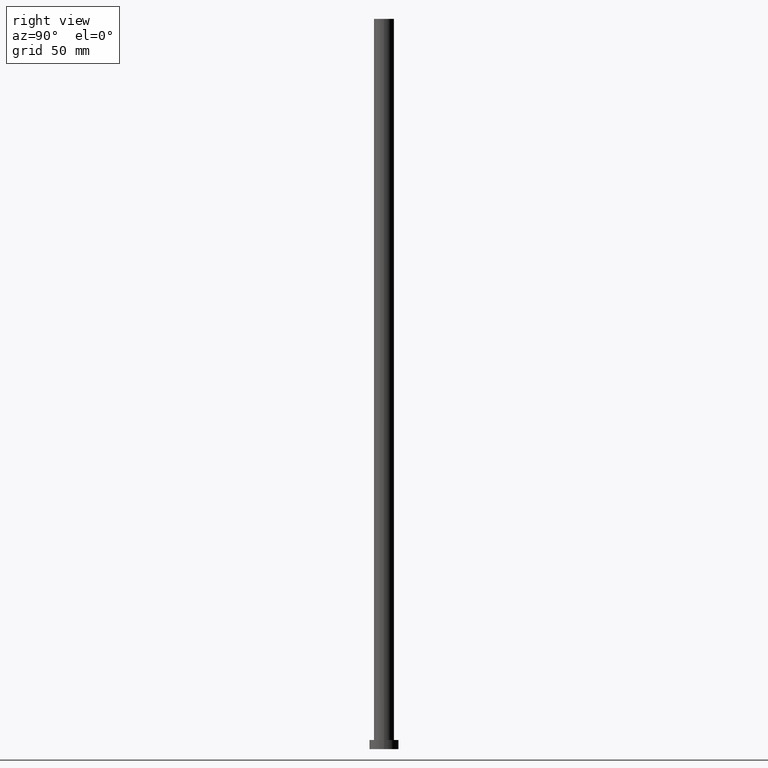
[diagram: clean part render]
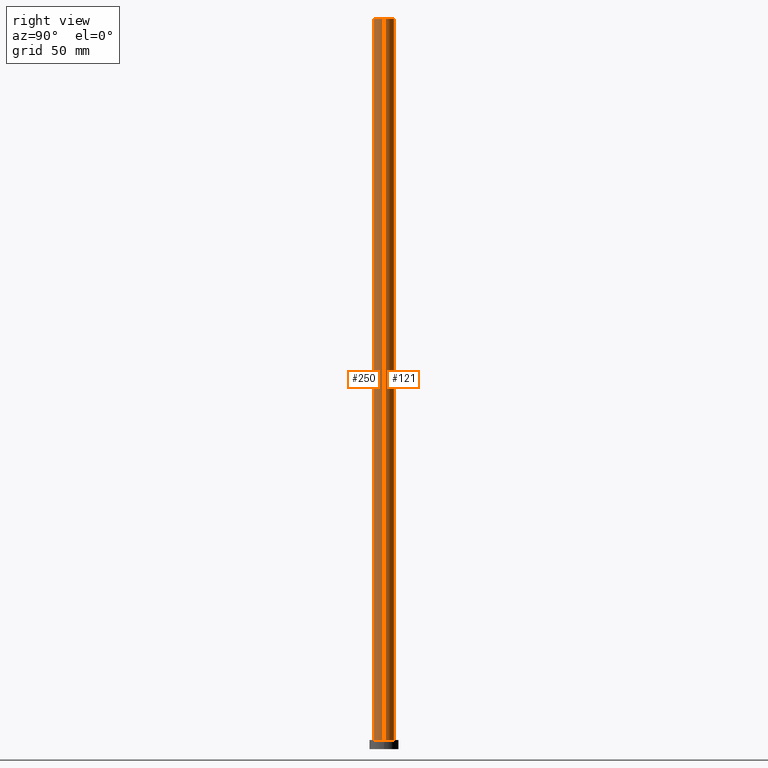
[diagram: same view with one multi-face feature highlighted, each face labeled with its STEP entity id]
A machine part, right view. The highlighted faces form ONE feature: a constant-radius fillet chain: 2 tangent blend faces with common blend radius 5.5 mm. The faces share edges in the B-rep.
Their STEP definitions:
[1] entity #250 (Cylinder):
#9 = AXIS2_PLACEMENT_3D ( 'NONE', #92, #136, #30 ) ;
#11 = EDGE_LOOP ( 'NONE', ( #48, #232, #163, #193 ) ) ;
#14 = VERTEX_POINT ( 'NONE', #224 ) ;
#19 = CARTESIAN_POINT ( 'NONE',  ( -5.500000000000000000, 0.000000000000000000, 400.0000000000000000 ) ) ;
#25 = EDGE_CURVE ( 'NONE', #225, #168, #71, .T. ) ;
#26 = AXIS2_PLACEMENT_3D ( 'NONE', #194, #169, #133 ) ;
#28 = DIRECTION ( 'NONE',  ( 1.000000000000000000, 0.000000000000000000, 0.000000000000000000 ) ) ;
#30 = DIRECTION ( 'NONE',  ( 1.000000000000000000, 0.000000000000000000, 0.000000000000000000 ) ) ;
#37 = VERTEX_POINT ( 'NONE', #172 ) ;
#47 = FACE_OUTER_BOUND ( 'NONE', #11, .T. ) ;
#48 = ORIENTED_EDGE ( 'NONE', *, *, #211, .F. ) ;
#58 = VECTOR ( 'NONE', #148, 1000.000000000000000 ) ;
#70 = LINE ( 'NONE', #198, #58 ) ;
#71 = CIRCLE ( 'NONE', #218, 5.500000000000000000 ) ;
#75 = CIRCLE ( 'NONE', #9, 5.500000000000000000 ) ;
#77 = CARTESIAN_POINT ( 'NONE',  ( 5.500000000000000000, 6.735557395310441037E-16, 400.0000000000000000 ) ) ;
#88 = DIRECTION ( 'NONE',  ( 0.000000000000000000, 0.000000000000000000, 1.000000000000000000 ) ) ;
#89 = EDGE_CURVE ( 'NONE', #225, #37, #70, .T. ) ;
#92 = CARTESIAN_POINT ( 'NONE',  ( 0.000000000000000000, 0.000000000000000000, 5.000000000000000000 ) ) ;
#104 = EDGE_CURVE ( 'NONE', #37, #14, #75, .T. ) ;
#112 = CARTESIAN_POINT ( 'NONE',  ( 0.000000000000000000, 0.000000000000000000, 400.0000000000000000 ) ) ;
#115 = VECTOR ( 'NONE', #125, 1000.000000000000000 ) ;
#125 = DIRECTION ( 'NONE',  ( -0.000000000000000000, -0.000000000000000000, -1.000000000000000000 ) ) ;
#133 = DIRECTION ( 'NONE',  ( -1.000000000000000000, 0.000000000000000000, 0.000000000000000000 ) ) ;
#136 = DIRECTION ( 'NONE',  ( 0.000000000000000000, 0.000000000000000000, 1.000000000000000000 ) ) ;
#148 = DIRECTION ( 'NONE',  ( -0.000000000000000000, -0.000000000000000000, -1.000000000000000000 ) ) ;
#163 = ORIENTED_EDGE ( 'NONE', *, *, #89, .T. ) ;
#168 = VERTEX_POINT ( 'NONE', #77 ) ;
#169 = DIRECTION ( 'NONE',  ( -0.000000000000000000, -0.000000000000000000, -1.000000000000000000 ) ) ;
#172 = CARTESIAN_POINT ( 'NONE',  ( -5.500000000000000000, 0.000000000000000000, 5.000000000000000000 ) ) ;
#193 = ORIENTED_EDGE ( 'NONE', *, *, #104, .T. ) ;
#194 = CARTESIAN_POINT ( 'NONE',  ( 0.000000000000000000, 0.000000000000000000, 400.0000000000000000 ) ) ;
#198 = CARTESIAN_POINT ( 'NONE',  ( -5.500000000000000000, 0.000000000000000000, 400.0000000000000000 ) ) ;
#211 = EDGE_CURVE ( 'NONE', #168, #14, #234, .T. ) ;
#218 = AXIS2_PLACEMENT_3D ( 'NONE', #112, #88, #28 ) ;
#219 = CARTESIAN_POINT ( 'NONE',  ( 5.500000000000000000, 6.735557395310441037E-16, 400.0000000000000000 ) ) ;
#224 = CARTESIAN_POINT ( 'NONE',  ( 5.500000000000000000, 6.735557395310441037E-16, 5.000000000000000000 ) ) ;
#225 = VERTEX_POINT ( 'NONE', #19 ) ;
#226 = CYLINDRICAL_SURFACE ( 'NONE', #26, 5.500000000000000000 ) ;
#232 = ORIENTED_EDGE ( 'NONE', *, *, #25, .F. ) ;
#234 = LINE ( 'NONE', #219, #115 ) ;
#250 = ADVANCED_FACE ( 'NONE', ( #47 ), #226, .T. ) ;
[2] entity #121 (Cylinder):
#2 = EDGE_CURVE ( 'NONE', #168, #225, #170, .T. ) ;
#6 = CARTESIAN_POINT ( 'NONE',  ( 0.000000000000000000, 0.000000000000000000, 5.000000000000000000 ) ) ;
#7 = DIRECTION ( 'NONE',  ( -1.000000000000000000, 0.000000000000000000, 0.000000000000000000 ) ) ;
#14 = VERTEX_POINT ( 'NONE', #224 ) ;
#19 = CARTESIAN_POINT ( 'NONE',  ( -5.500000000000000000, 0.000000000000000000, 400.0000000000000000 ) ) ;
#31 = CARTESIAN_POINT ( 'NONE',  ( 0.000000000000000000, 0.000000000000000000, 400.0000000000000000 ) ) ;
#37 = VERTEX_POINT ( 'NONE', #172 ) ;
#46 = ORIENTED_EDGE ( 'NONE', *, *, #2, .F. ) ;
#50 = DIRECTION ( 'NONE',  ( -0.000000000000000000, -0.000000000000000000, -1.000000000000000000 ) ) ;
#52 = DIRECTION ( 'NONE',  ( 1.000000000000000000, 0.000000000000000000, 0.000000000000000000 ) ) ;
#53 = CYLINDRICAL_SURFACE ( 'NONE', #235, 5.500000000000000000 ) ;
#58 = VECTOR ( 'NONE', #148, 1000.000000000000000 ) ;
#60 = DIRECTION ( 'NONE',  ( 1.000000000000000000, 0.000000000000000000, 0.000000000000000000 ) ) ;
#61 = DIRECTION ( 'NONE',  ( 0.000000000000000000, 0.000000000000000000, 1.000000000000000000 ) ) ;
#65 = CARTESIAN_POINT ( 'NONE',  ( 0.000000000000000000, 0.000000000000000000, 400.0000000000000000 ) ) ;
#70 = LINE ( 'NONE', #198, #58 ) ;
#77 = CARTESIAN_POINT ( 'NONE',  ( 5.500000000000000000, 6.735557395310441037E-16, 400.0000000000000000 ) ) ;
#86 = ORIENTED_EDGE ( 'NONE', *, *, #94, .T. ) ;
#89 = EDGE_CURVE ( 'NONE', #225, #37, #70, .T. ) ;
#90 = DIRECTION ( 'NONE',  ( 0.000000000000000000, 0.000000000000000000, 1.000000000000000000 ) ) ;
#94 = EDGE_CURVE ( 'NONE', #14, #37, #245, .T. ) ;
#105 = ORIENTED_EDGE ( 'NONE', *, *, #211, .T. ) ;
#115 = VECTOR ( 'NONE', #125, 1000.000000000000000 ) ;
#121 = ADVANCED_FACE ( 'NONE', ( #179 ), #53, .T. ) ;
#125 = DIRECTION ( 'NONE',  ( -0.000000000000000000, -0.000000000000000000, -1.000000000000000000 ) ) ;
#126 = EDGE_LOOP ( 'NONE', ( #46, #105, #86, #252 ) ) ;
#139 = AXIS2_PLACEMENT_3D ( 'NONE', #6, #90, #52 ) ;
#148 = DIRECTION ( 'NONE',  ( -0.000000000000000000, -0.000000000000000000, -1.000000000000000000 ) ) ;
#154 = AXIS2_PLACEMENT_3D ( 'NONE', #65, #61, #60 ) ;
#168 = VERTEX_POINT ( 'NONE', #77 ) ;
#170 = CIRCLE ( 'NONE', #154, 5.500000000000000000 ) ;
#172 = CARTESIAN_POINT ( 'NONE',  ( -5.500000000000000000, 0.000000000000000000, 5.000000000000000000 ) ) ;
#179 = FACE_OUTER_BOUND ( 'NONE', #126, .T. ) ;
#198 = CARTESIAN_POINT ( 'NONE',  ( -5.500000000000000000, 0.000000000000000000, 400.0000000000000000 ) ) ;
#211 = EDGE_CURVE ( 'NONE', #168, #14, #234, .T. ) ;
#219 = CARTESIAN_POINT ( 'NONE',  ( 5.500000000000000000, 6.735557395310441037E-16, 400.0000000000000000 ) ) ;
#224 = CARTESIAN_POINT ( 'NONE',  ( 5.500000000000000000, 6.735557395310441037E-16, 5.000000000000000000 ) ) ;
#225 = VERTEX_POINT ( 'NONE', #19 ) ;
#234 = LINE ( 'NONE', #219, #115 ) ;
#235 = AXIS2_PLACEMENT_3D ( 'NONE', #31, #50, #7 ) ;
#245 = CIRCLE ( 'NONE', #139, 5.500000000000000000 ) ;
#252 = ORIENTED_EDGE ( 'NONE', *, *, #89, .F. ) ;